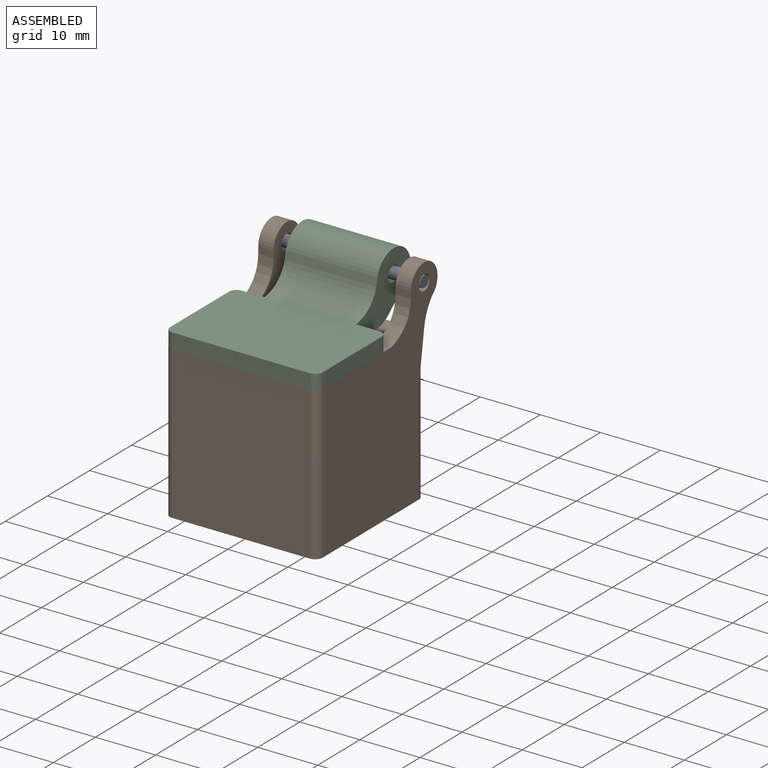
[diagram: assembled view]
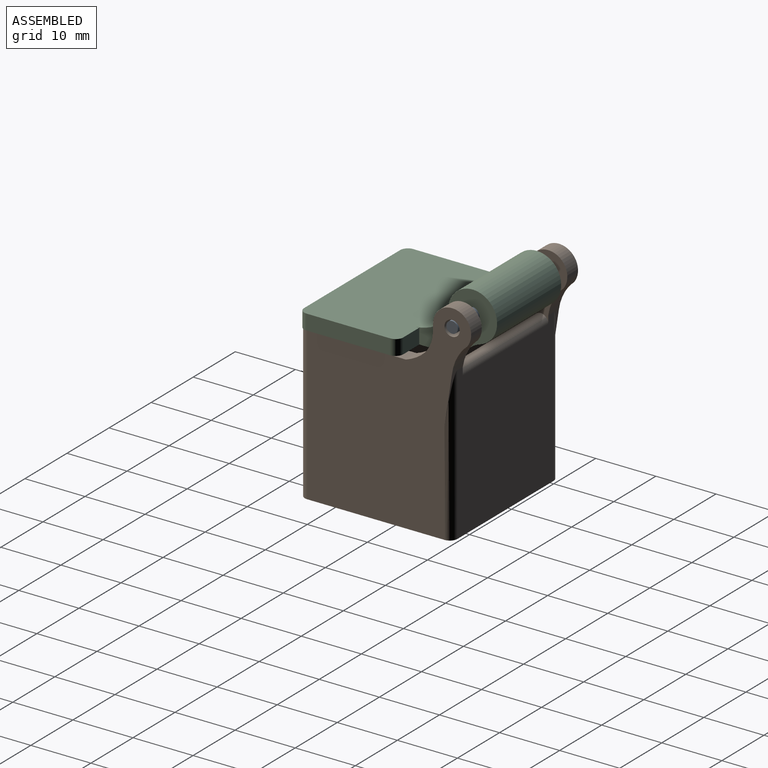
[diagram: assembled view, second angle]
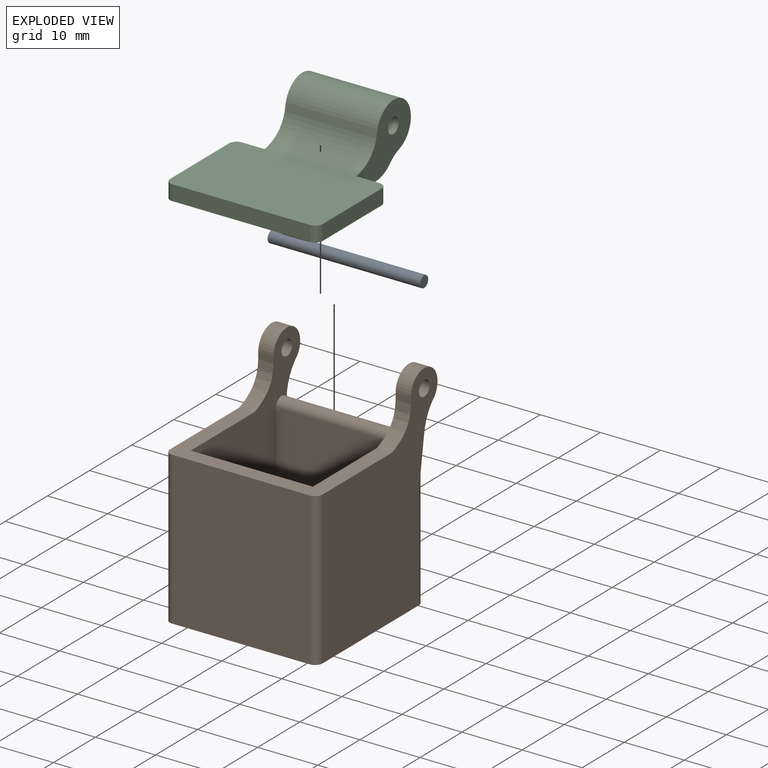
[diagram: exploded view]
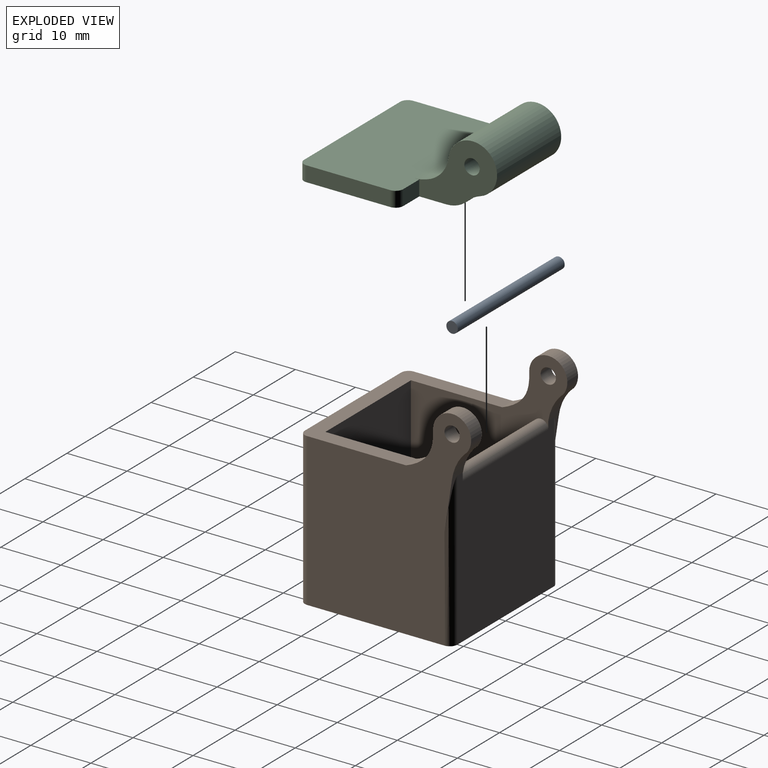
[diagram: exploded view, second angle]
ASSEMBLY  parts=3 mates=2
PART A: 3 faces, bbox 25.4x1.9x1.9 mm
  f0: cylinder r=0.95mm len=25.4mm, axis (-1,0,0), area 152mm2, adj f1,f2
  f1: plane 1.91x1.91mm, normal (1,0,0), area 2.9mm2, adj f0
  f2: plane 1.91x1.91mm, normal (-1,0,0), area 2.9mm2, adj f0
PART B: 24 faces, bbox 25.4x28.6x35.2 mm
  f0: plane 25.4x17.7mm, normal (0,0,1), area 140.8mm2, adj f1,f2,f4,f6,f9,f10,f13,f15
  f1: plane 35.19x27.31mm, normal (1,0,0), area 634.1mm2, adj f0,f3,f6,f7,f8,f18,f20,f23
  f2: plane 35.19x27.31mm, normal (-1,0,0), area 634.1mm2, adj f0,f3,f10,f11,f12,f17,f19,f22
  f3: plane 25.4x25.4mm, normal (0,0,-1), area 643.8mm2, adj f1,f2,f4,f5,f17,f18,f19,f20
  f4: plane 25.4x22.86mm, normal (0,-1,0), area 580.6mm2, adj f0,f3,f19,f20
  f5: plane 25.4x22.86mm, normal (0,1,0), area 554.8mm2, adj f3,f7,f9,f11,f13,f17,f18,f21
  f6: extruded ~6.66x4.54mm, area 22.4mm2, adj f0,f1,f8,f9
  f7: extruded ~12.99x3.77mm, area 16mm2, adj f1,f5,f8,f9,f18
  f8: cylinder r=3.17mm len=6.35mm, axis (1,0,0), area 30.6mm2, adj f1,f6,f7,f9
  f9: plane 32.65x26.04mm, normal (-1,0,0), area 513.5mm2, adj f0,f5,f6,f7,f8,f14,f15,f16
  f10: extruded ~6.66x4.54mm, area 22.4mm2, adj f0,f2,f12,f13
  f11: extruded ~12.99x3.77mm, area 16mm2, adj f2,f5,f12,f13,f17
  f12: cylinder r=3.17mm len=6.35mm, axis (-1,0,0), area 30.6mm2, adj f2,f10,f11,f13
  f13: plane 32.65x26.04mm, normal (1,0,0), area 513.5mm2, adj f0,f5,f10,f11,f12,f14,f15,f16
  f14: plane 20.32x20.32mm, normal (0,0,1), area 412.9mm2, adj f9,f13,f15,f16
  f15: plane 22.86x20.32mm, normal (0,1,0), area 464.5mm2, adj f0,f9,f13,f14
  f16: plane 21.59x20.32mm, normal (0,-1,0), area 438.7mm2, adj f9,f13,f14,f21
  f17: cylinder r=1.27mm len=25.4mm, axis (0,0,-1), area 44.6mm2, adj f2,f3,f5,f11
  f18: cylinder r=1.27mm len=25.4mm, axis (0,0,1), area 44.6mm2, adj f1,f3,f5,f7
  f19: cylinder r=1.27mm len=25.4mm, axis (0,0,1), area 50.7mm2, adj f0,f2,f3,f4
  f20: cylinder r=1.27mm len=25.4mm, axis (0,0,-1), area 50.7mm2, adj f0,f1,f3,f4
  f21: cylinder r=1.27mm len=20.32mm, axis (-1,0,0), area 81.1mm2, adj f5,f9,f13,f16
  f22: cylinder r=1.27mm len=2.54mm, axis (1,0,0), area 20.3mm2, adj f2,f13
  f23: cylinder r=1.27mm len=2.54mm, axis (1,0,0), area 20.3mm2, adj f1,f9
PART C: 20 faces, bbox 25.4x29.5x10.7 mm
  f0: cylinder r=4.06mm len=15.24mm, axis (1,0,0), area 264.8mm2, adj f1,f2,f11,f14
  f1: plane 13.66x10.67mm, normal (-1,0,0), area 75.9mm2, adj f0,f3,f4,f5,f10,f11,f12,f13
  f2: plane 13.66x10.67mm, normal (1,0,0), area 75.9mm2, adj f0,f3,f4,f9,f10,f11,f12,f13
  f3: plane 15.24x0.53mm, normal (0,-0.27,0.96), area 8.4mm2, adj f1,f2,f11,f12
  f4: plane 25.4x16.51mm, normal (0,0,1), area 407.2mm2, adj f1,f2,f5,f6,f7,f8,f9,f12
  f5: plane 3.81x2.54mm, normal (0,1,0), area 9.7mm2, adj f1,f4,f10,f18
  f6: plane 13.97x2.54mm, normal (-1,0,0), area 35.5mm2, adj f4,f10,f16,f18
  f7: plane 22.86x2.54mm, normal (0,-1,0), area 58.1mm2, adj f4,f10,f15,f16
  f8: plane 13.97x2.54mm, normal (1,0,0), area 35.5mm2, adj f4,f10,f15,f17
  f9: plane 3.81x2.54mm, normal (0,1,0), area 9.7mm2, adj f2,f4,f10,f17
  f10: plane 25.4x21mm, normal (0,0,-1), area 486.4mm2, adj f1,f2,f5,f6,f7,f8,f9,f13
  f11: cylinder r=5.08mm len=15.24mm, axis (1,0,0), area 90.2mm2, adj f0,f1,f2,f3
  f12: cylinder r=5.08mm len=15.24mm, axis (-1,0,0), area 21.5mm2, adj f1,f2,f3,f4
  f13: cylinder r=5.08mm len=15.24mm, axis (1,0,0), area 60.8mm2, adj f1,f2,f10,f14
  f14: cylinder r=5.08mm len=15.24mm, axis (-1,0,0), area 36.8mm2, adj f0,f1,f2,f13
  f15: cylinder r=1.27mm len=2.54mm, axis (0,0,-1), area 5.1mm2, adj f4,f7,f8,f10
  f16: cylinder r=1.27mm len=2.54mm, axis (0,0,1), area 5.1mm2, adj f4,f6,f7,f10
  f17: cylinder r=1.27mm len=2.54mm, axis (0,0,-1), area 5.1mm2, adj f4,f8,f9,f10
  f18: cylinder r=1.27mm len=2.54mm, axis (0,0,-1), area 5.1mm2, adj f4,f5,f6,f10
  f19: cylinder r=1.27mm len=15.24mm, axis (1,0,0), area 121.6mm2, adj f1,f2
PLACE A t=(-12.7,0,19.46)mm
PLACE B t=(0,0,-0.15)mm
PLACE C t=(0.08,-12.78,12.55)mm
MATE planar A.f0 <-> B.f22  axis (1,0,0) through (12.7,0,19.46)mm
MATE planar C.f10 <-> B.f0  axis (0,0,-1) through (12.78,-24.21,12.55)mm
